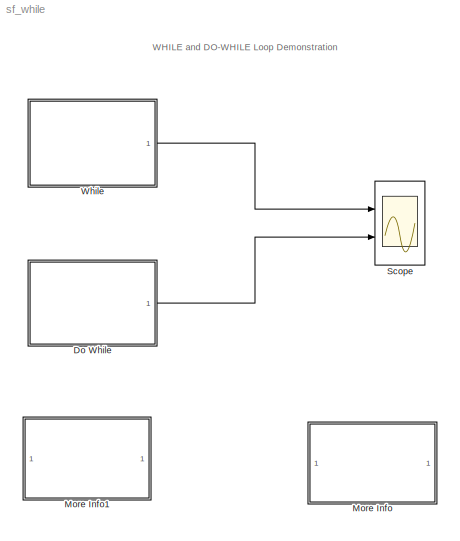
MODEL sf_while
KIND model
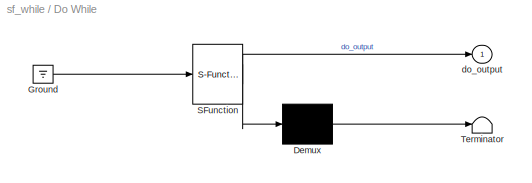
BLOCK [SubSystem] Do While
  MaskDescription = Stateflow diagram
  MaskDisplay = plot(sf('Private','sfblk','xIcon'),sf('Private','sfblk','yIcon'));text(0.5,0,sf('Private', 'sfblk', 'tIcon'),'HorizontalAl','Center','VerticalAl','Bottom');
  MaskIconFrame = off
  MaskIconOpaque = off
  MaskIconRotate = none
  MaskIconUnits = autoscale
  MaskSelfModifiable = on
  MaskType = Stateflow
  MinAlgLoopOccurrences = off
  Ports = [0, 1]
  PropExecContextAcrossSSBoundary = on
  RTWSystemCode = Auto
  TreatAsAtomicUnit = off
BLOCK [Demux] Do While/ Demux 
  Outputs = 1
  Ports = [1, 1]
BLOCK [Ground] Do While/ Ground 
BLOCK [S-Function] Do While/ SFunction 
  FunctionName = sf_sfun
  PortCounts = [1 2]
  Ports = [1, 2]
  Tag = Stateflow S-Function sf_while 4
BLOCK [Terminator] Do While/ Terminator 
BLOCK [Outport] Do While/do_output
  IconDisplay = Port number
BLOCK [SubSystem] More Info
  MaskDisplay = disp('Double click\\nhere for\\ninformation on\\nthis demonstration')
  MaskIconFrame = on
  MaskIconOpaque = on
  MaskIconRotate = none
  MaskIconUnits = autoscale
  MinAlgLoopOccurrences = off
  Ports = []
  PropExecContextAcrossSSBoundary = on
  RTWSystemCode = Auto
  TreatAsAtomicUnit = off
BLOCK [SubSystem] More Info1
  MaskDisplay = disp('Double click\\nhere for<path> Help')
  MaskIconFrame = on
  MaskIconOpaque = on
  MaskIconRotate = none
  MaskIconUnits = autoscale
  MinAlgLoopOccurrences = off
  OpenFcn = simcad(bdroot);
  Ports = []
  PropExecContextAcrossSSBoundary = on
  RTWSystemCode = Auto
  TreatAsAtomicUnit = off
BLOCK [Scope] Scope
  DataFormat = StructureWithTime
  LimitDataPoints = off
  NumInputPorts = 2
  Ports = [2]
  TimeRange = 1
  YMax = 20~20
  YMin = 0~0
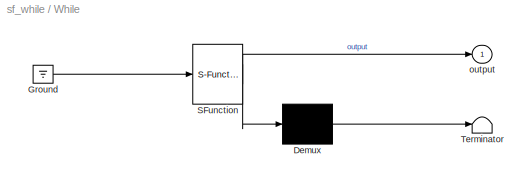
BLOCK [SubSystem] While
  MaskDescription = Stateflow diagram
  MaskDisplay = plot(sf('Private','sfblk','xIcon'),sf('Private','sfblk','yIcon'));text(0.5,0,sf('Private', 'sfblk', 'tIcon'),'HorizontalAl','Center','VerticalAl','Bottom');
  MaskIconFrame = off
  MaskIconOpaque = off
  MaskIconRotate = none
  MaskIconUnits = autoscale
  MaskSelfModifiable = on
  MaskType = Stateflow
  MinAlgLoopOccurrences = off
  Ports = [0, 1]
  PropExecContextAcrossSSBoundary = on
  RTWSystemCode = Auto
  TreatAsAtomicUnit = off
BLOCK [Demux] While/ Demux 
  Outputs = 1
  Ports = [1, 1]
BLOCK [Ground] While/ Ground 
BLOCK [S-Function] While/ SFunction 
  FunctionName = sf_sfun
  PortCounts = [1 2]
  Ports = [1, 2]
  Tag = Stateflow S-Function sf_while 3
BLOCK [Terminator] While/ Terminator 
BLOCK [Outport] While/output
  IconDisplay = Port number
ANNOTATION (root): WHILE and DO-WHILE Loop Demonstration
ANNOTATION More Info: WHILE and DO-WHILE Loop
ANNOTATION More Info: With the use of flow charts, Stateflow allows you to create C-Code or M-Code statements such as\nthe WHILE loop. This particular demo illustrates how a WHILE loop and a DO-WHILE can be \nimplemented in Stateflow in order to create a variable array. The equivalent statements in C-Code \nare as follows:\n\nWHILE: \nwhile(condition < 20)\n{\n while_output[i] = condition;\n i++;\n condition+=2;\n}\n\n...<+400ch>
LINE Do While/ Demux :1 -> Do While/ Terminator :1
LINE Do While/ Ground :1 -> Do While/ SFunction :1
LINE Do While/ SFunction :1 -> Do While/ Demux :1
LINE Do While/ SFunction :2 -> Do While/do_output:1
LINE Do While:1 -> Scope:2
LINE While/ Demux :1 -> While/ Terminator :1
LINE While/ Ground :1 -> While/ SFunction :1
LINE While/ SFunction :1 -> While/ Demux :1
LINE While/ SFunction :2 -> While/output:1
LINE While:1 -> Scope:1
CHART While states=1 transitions=4
  STATE_LABEL 'Equivalent C-Code:\\n\\nwhile(condition < 20)\\n{\\n    while_output[i] = condition;\\n    i++;\\n    condition+=2;\\n}'
CHART Do While states=1 transitions=4
  STATE_LABEL 'Equivalent C-Code\\n\\ndo {\\n      do_output[i]=condition;\\n      condition+=2;\\n      i++;\\n     } while(condition<20);'
note: 1 file-system path scrubbed to <path> (not preserved elsewhere — flat text is the only slx artifact)
